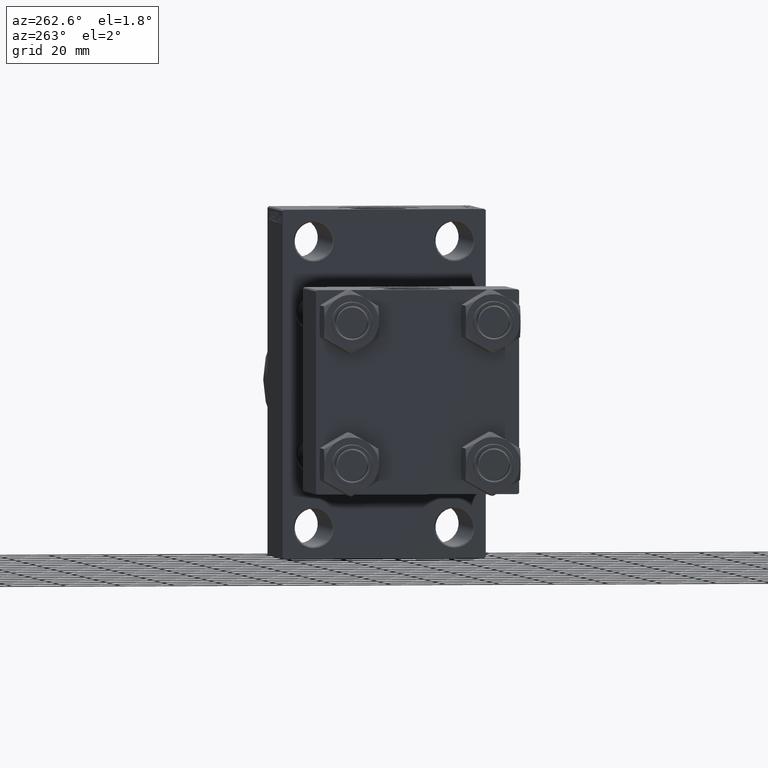
[diagram: clean part render]
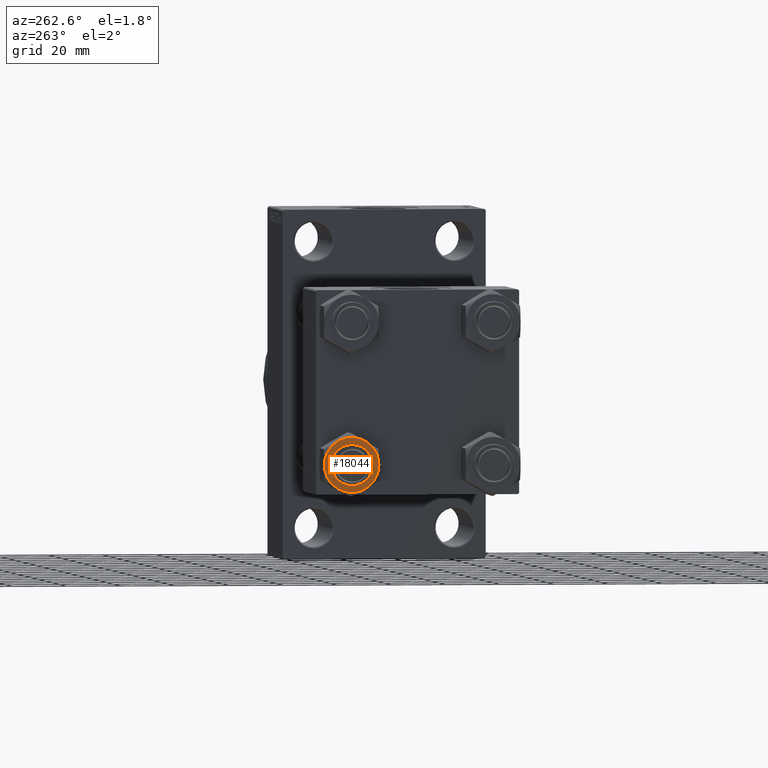
[diagram: same view with one face highlighted and labeled with its STEP entity id]
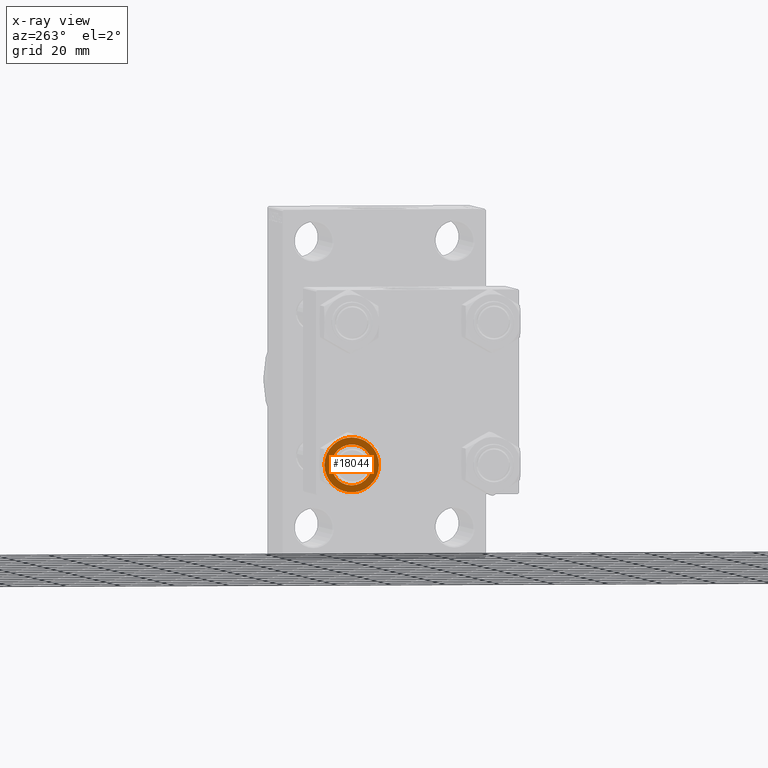
[diagram: x-ray of the same camera — body ghosted, the highlighted face saturated]
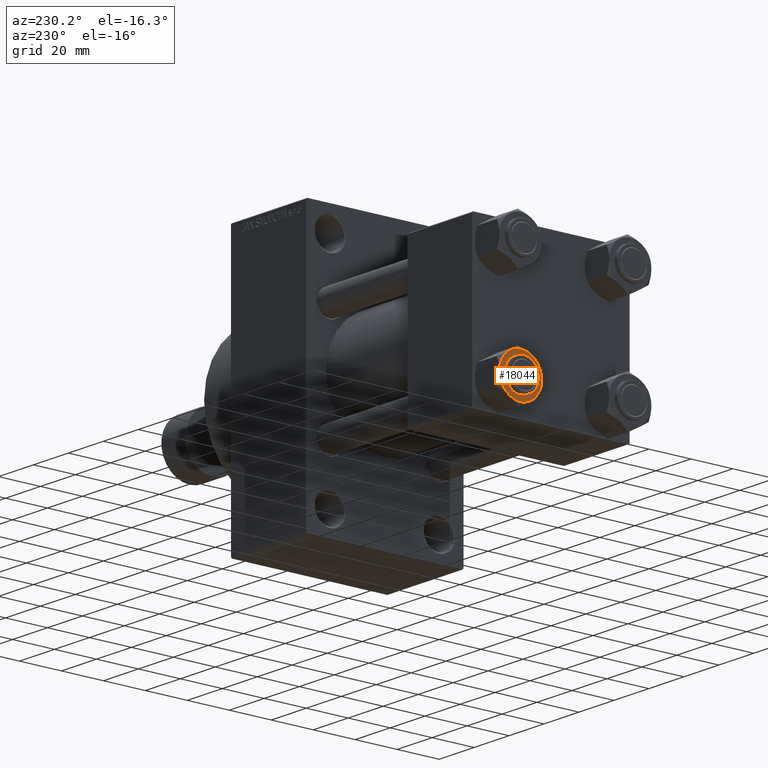
[diagram: same view with one face highlighted and labeled with its STEP entity id]
A machine part, auxiliary view. The second image highlights one B-rep face of the part: STEP entity #18044.
The next image is the same camera in x-ray: the body ghosted, the highlighted face saturated — about 0% of this face is hidden behind the body in this view.
A second angle (auxiliary view) of the same face is appended — the face is thin or edge-on in the first view.
In plain terms, the highlighted planar face has unit normal (1, 0, 0).
Its self-contained STEP definition (entity closure, byte-faithful):
#212 = EDGE_CURVE ( 'NONE', #21335, #9314, #16433, .T. ) ;
#351 = CIRCLE ( 'NONE', #21889, 7.500000000000000000 ) ;
#748 = EDGE_LOOP ( 'NONE', ( #43164, #27940 ) ) ;
#769 = DIRECTION ( 'NONE',  ( -1.000000000000000000, 0.000000000000000000, 0.000000000000000000 ) ) ;
#908 = DIRECTION ( 'NONE',  ( 0.000000000000000000, -0.000000000000000000, -1.000000000000000000 ) ) ;
#1701 = CIRCLE ( 'NONE', #24781, 10.06321519197518199 ) ;
#2072 = CARTESIAN_POINT ( 'NONE',  ( -8.715000000000003411, 5.031607595987592774, 0.000000000000000000 ) ) ;
#2158 = ORIENTED_EDGE ( 'NONE', *, *, #37698, .F. ) ;
#2705 = EDGE_CURVE ( 'NONE', #40519, #19784, #351, .T. ) ;
#3257 = CARTESIAN_POINT ( 'NONE',  ( 0.000000000000000000, 10.06321519197518022, 0.000000000000000000 ) ) ;
#3267 = FACE_BOUND ( 'NONE', #748, .T. ) ;
#3862 = EDGE_CURVE ( 'NONE', #21198, #21335, #26439, .T. ) ;
#3883 = CARTESIAN_POINT ( 'NONE',  ( -8.715000000000006963, -5.031607595987586556, 0.000000000000000000 ) ) ;
#4741 = CARTESIAN_POINT ( 'NONE',  ( 0.000000000000000000, 0.000000000000000000, 0.000000000000000000 ) ) ;
#4984 = DIRECTION ( 'NONE',  ( 0.000000000000000000, -0.000000000000000000, -1.000000000000000000 ) ) ;
#5114 = DIRECTION ( 'NONE',  ( 0.000000000000000000, 0.000000000000000000, 1.000000000000000000 ) ) ;
#5318 = ORIENTED_EDGE ( 'NONE', *, *, #11083, .F. ) ;
#5608 = DIRECTION ( 'NONE',  ( 0.000000000000000000, -0.000000000000000000, -1.000000000000000000 ) ) ;
#6124 = VERTEX_POINT ( 'NONE', #2072 ) ;
#7980 = EDGE_CURVE ( 'NONE', #6124, #8987, #31949, .T. ) ;
#8121 = DIRECTION ( 'NONE',  ( 1.000000000000000000, 0.000000000000000000, 0.000000000000000000 ) ) ;
#8987 = VERTEX_POINT ( 'NONE', #3257 ) ;
#9314 = VERTEX_POINT ( 'NONE', #13315 ) ;
#11083 = EDGE_CURVE ( 'NONE', #28878, #6124, #43301, .T. ) ;
#12017 = CARTESIAN_POINT ( 'NONE',  ( 7.500000000000000000, 9.184850993605147944E-16, 0.000000000000000000 ) ) ;
#12788 = AXIS2_PLACEMENT_3D ( 'NONE', #43506, #25685, #32192 ) ;
#13315 = CARTESIAN_POINT ( 'NONE',  ( 8.715000000000003411, -5.031607595987592774, 0.000000000000000000 ) ) ;
#16433 = CIRCLE ( 'NONE', #24109, 10.06321519197518199 ) ;
#16482 = DIRECTION ( 'NONE',  ( 0.000000000000000000, 0.000000000000000000, 1.000000000000000000 ) ) ;
#18044 = ADVANCED_FACE ( 'NONE', ( #3267, #40116 ), #46653, .F. ) ;
#18579 = DIRECTION ( 'NONE',  ( -1.000000000000000000, 0.000000000000000000, 0.000000000000000000 ) ) ;
#18841 = DIRECTION ( 'NONE',  ( 0.000000000000000000, -0.000000000000000000, -1.000000000000000000 ) ) ;
#18897 = CARTESIAN_POINT ( 'NONE',  ( 10.06321519197518199, 0.000000000000000000, 0.000000000000000000 ) ) ;
#19074 = CARTESIAN_POINT ( 'NONE',  ( 0.000000000000000000, 0.000000000000000000, 0.000000000000000000 ) ) ;
#19137 = ORIENTED_EDGE ( 'NONE', *, *, #212, .F. ) ;
#19139 = EDGE_CURVE ( 'NONE', #19784, #40519, #40397, .T. ) ;
#19587 = VERTEX_POINT ( 'NONE', #20107 ) ;
#19784 = VERTEX_POINT ( 'NONE', #19834 ) ;
#19834 = CARTESIAN_POINT ( 'NONE',  ( -7.500000000000000000, 0.000000000000000000, 0.000000000000000000 ) ) ;
#20107 = CARTESIAN_POINT ( 'NONE',  ( 1.502314598737159623E-15, -10.06321519197518199, 0.000000000000000000 ) ) ;
#21198 = VERTEX_POINT ( 'NONE', #40211 ) ;
#21335 = VERTEX_POINT ( 'NONE', #18897 ) ;
#21889 = AXIS2_PLACEMENT_3D ( 'NONE', #23894, #5114, #37865 ) ;
#22214 = CARTESIAN_POINT ( 'NONE',  ( 0.000000000000000000, 0.000000000000000000, 0.000000000000000000 ) ) ;
#22551 = AXIS2_PLACEMENT_3D ( 'NONE', #30488, #5608, #34781 ) ;
#23894 = CARTESIAN_POINT ( 'NONE',  ( 0.000000000000000000, 0.000000000000000000, 0.000000000000000000 ) ) ;
#24109 = AXIS2_PLACEMENT_3D ( 'NONE', #19074, #29707, #769 ) ;
#24198 = DIRECTION ( 'NONE',  ( 1.000000000000000000, 0.000000000000000000, 0.000000000000000000 ) ) ;
#24781 = AXIS2_PLACEMENT_3D ( 'NONE', #4741, #40652, #8121 ) ;
#25685 = DIRECTION ( 'NONE',  ( 0.000000000000000000, 0.000000000000000000, -1.000000000000000000 ) ) ;
#25766 = AXIS2_PLACEMENT_3D ( 'NONE', #22214, #40266, #18579 ) ;
#25885 = CIRCLE ( 'NONE', #25766, 10.06321519197518199 ) ;
#26439 = CIRCLE ( 'NONE', #46419, 10.06321519197518199 ) ;
#27338 = AXIS2_PLACEMENT_3D ( 'NONE', #39112, #16482, #24198 ) ;
#27940 = ORIENTED_EDGE ( 'NONE', *, *, #2705, .F. ) ;
#28683 = AXIS2_PLACEMENT_3D ( 'NONE', #33078, #18841, #40767 ) ;
#28711 = ORIENTED_EDGE ( 'NONE', *, *, #7980, .F. ) ;
#28878 = VERTEX_POINT ( 'NONE', #3883 ) ;
#29081 = ORIENTED_EDGE ( 'NONE', *, *, #45477, .F. ) ;
#29372 = CARTESIAN_POINT ( 'NONE',  ( 0.000000000000000000, 0.000000000000000000, 0.000000000000000000 ) ) ;
#29707 = DIRECTION ( 'NONE',  ( 0.000000000000000000, -0.000000000000000000, -1.000000000000000000 ) ) ;
#30488 = CARTESIAN_POINT ( 'NONE',  ( 0.000000000000000000, 0.000000000000000000, 0.000000000000000000 ) ) ;
#30772 = CARTESIAN_POINT ( 'NONE',  ( 0.000000000000000000, 0.000000000000000000, 0.000000000000000000 ) ) ;
#31949 = CIRCLE ( 'NONE', #43504, 10.06321519197518199 ) ;
#32192 = DIRECTION ( 'NONE',  ( -1.000000000000000000, 0.000000000000000000, -0.000000000000000000 ) ) ;
#33078 = CARTESIAN_POINT ( 'NONE',  ( 0.000000000000000000, 0.000000000000000000, 0.000000000000000000 ) ) ;
#33928 = DIRECTION ( 'NONE',  ( -1.000000000000000000, 0.000000000000000000, 0.000000000000000000 ) ) ;
#34781 = DIRECTION ( 'NONE',  ( -1.000000000000000000, 0.000000000000000000, 0.000000000000000000 ) ) ;
#37044 = EDGE_CURVE ( 'NONE', #21198, #8987, #1701, .T. ) ;
#37698 = EDGE_CURVE ( 'NONE', #19587, #28878, #44085, .T. ) ;
#37865 = DIRECTION ( 'NONE',  ( 1.000000000000000000, 0.000000000000000000, 0.000000000000000000 ) ) ;
#38448 = DIRECTION ( 'NONE',  ( -1.000000000000000000, 0.000000000000000000, 0.000000000000000000 ) ) ;
#39112 = CARTESIAN_POINT ( 'NONE',  ( 0.000000000000000000, 0.000000000000000000, 0.000000000000000000 ) ) ;
#39716 = ORIENTED_EDGE ( 'NONE', *, *, #37044, .T. ) ;
#40116 = FACE_OUTER_BOUND ( 'NONE', #41745, .T. ) ;
#40211 = CARTESIAN_POINT ( 'NONE',  ( 8.715000000000005187, 5.031607595987590109, 0.000000000000000000 ) ) ;
#40266 = DIRECTION ( 'NONE',  ( 0.000000000000000000, -0.000000000000000000, -1.000000000000000000 ) ) ;
#40397 = CIRCLE ( 'NONE', #27338, 7.500000000000000000 ) ;
#40519 = VERTEX_POINT ( 'NONE', #12017 ) ;
#40652 = DIRECTION ( 'NONE',  ( 0.000000000000000000, 0.000000000000000000, 1.000000000000000000 ) ) ;
#40767 = DIRECTION ( 'NONE',  ( -1.000000000000000000, 0.000000000000000000, 0.000000000000000000 ) ) ;
#40973 = ORIENTED_EDGE ( 'NONE', *, *, #3862, .F. ) ;
#41745 = EDGE_LOOP ( 'NONE', ( #28711, #5318, #2158, #29081, #19137, #40973, #39716 ) ) ;
#43164 = ORIENTED_EDGE ( 'NONE', *, *, #19139, .F. ) ;
#43301 = CIRCLE ( 'NONE', #22551, 10.06321519197518199 ) ;
#43504 = AXIS2_PLACEMENT_3D ( 'NONE', #30772, #4984, #38448 ) ;
#43506 = CARTESIAN_POINT ( 'NONE',  ( 0.000000000000000000, 0.000000000000000000, 0.000000000000000000 ) ) ;
#44085 = CIRCLE ( 'NONE', #28683, 10.06321519197518199 ) ;
#45477 = EDGE_CURVE ( 'NONE', #9314, #19587, #25885, .T. ) ;
#46419 = AXIS2_PLACEMENT_3D ( 'NONE', #29372, #908, #33928 ) ;
#46653 = PLANE ( 'NONE',  #12788 ) ;